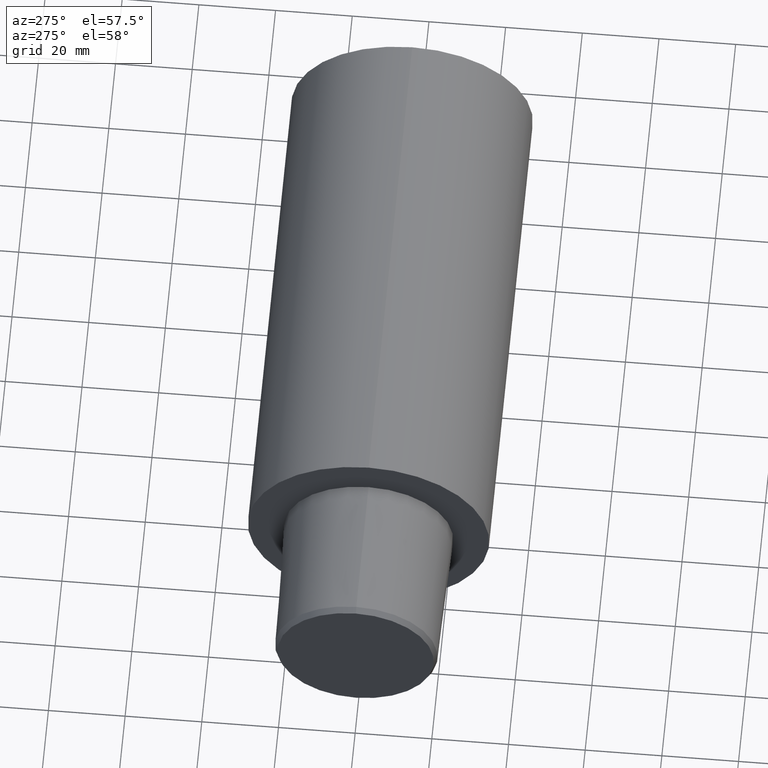
[diagram: clean part render]
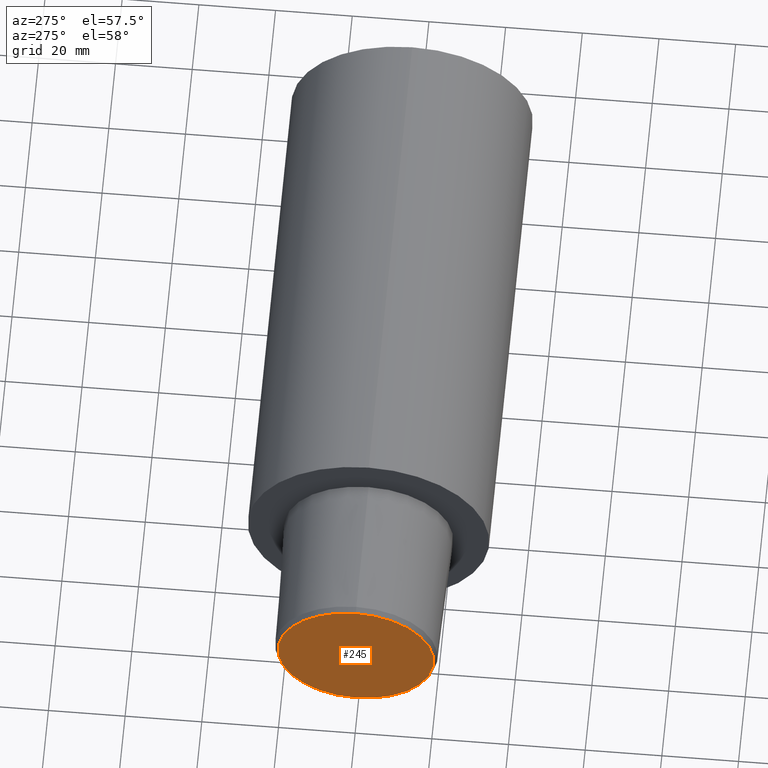
[diagram: same view with one face highlighted and labeled with its STEP entity id]
A machine part, auxiliary view. The second image highlights one B-rep face of the part: STEP entity #245.
In plain terms, the highlighted planar face has unit normal (1, 0, 0).
Its self-contained STEP definition (entity closure, byte-faithful):
#13 = CIRCLE ( 'NONE', #128, 20.34731859924573172 ) ;
#17 = DIRECTION ( 'NONE',  ( -1.000000000000000000, 0.000000000000000000, 0.000000000000000000 ) ) ;
#33 = CARTESIAN_POINT ( 'NONE',  ( -37.99999996124000035, 0.000000000000000000, -20.34731859924573172 ) ) ;
#34 = EDGE_CURVE ( 'NONE', #157, #282, #13, .T. ) ;
#54 = CIRCLE ( 'NONE', #82, 20.34731859924573172 ) ;
#58 = CARTESIAN_POINT ( 'NONE',  ( -37.99999996124000035, 0.000000000000000000, 0.000000000000000000 ) ) ;
#61 = DIRECTION ( 'NONE',  ( 1.000000000000000000, 0.000000000000000000, 0.000000000000000000 ) ) ;
#80 = CARTESIAN_POINT ( 'NONE',  ( -37.99999996124000035, 2.544856621203993748E-15, 20.34731859924573172 ) ) ;
#82 = AXIS2_PLACEMENT_3D ( 'NONE', #268, #17, #266 ) ;
#115 = DIRECTION ( 'NONE',  ( -1.000000000000000000, 0.000000000000000000, 0.000000000000000000 ) ) ;
#116 = CARTESIAN_POINT ( 'NONE',  ( -37.99999996124000035, 20.34731859924573172, 0.000000000000000000 ) ) ;
#128 = AXIS2_PLACEMENT_3D ( 'NONE', #58, #115, #167 ) ;
#129 = AXIS2_PLACEMENT_3D ( 'NONE', #116, #61, #235 ) ;
#130 = EDGE_LOOP ( 'NONE', ( #216, #321 ) ) ;
#157 = VERTEX_POINT ( 'NONE', #80 ) ;
#167 = DIRECTION ( 'NONE',  ( 0.000000000000000000, 0.000000000000000000, 1.000000000000000000 ) ) ;
#216 = ORIENTED_EDGE ( 'NONE', *, *, #351, .T. ) ;
#230 = FACE_OUTER_BOUND ( 'NONE', #130, .T. ) ;
#235 = DIRECTION ( 'NONE',  ( 0.000000000000000000, 1.000000000000000000, 0.000000000000000000 ) ) ;
#245 = ADVANCED_FACE ( 'NONE', ( #230 ), #287, .F. ) ;
#266 = DIRECTION ( 'NONE',  ( 0.000000000000000000, 0.000000000000000000, 1.000000000000000000 ) ) ;
#268 = CARTESIAN_POINT ( 'NONE',  ( -37.99999996124000035, 0.000000000000000000, 0.000000000000000000 ) ) ;
#282 = VERTEX_POINT ( 'NONE', #33 ) ;
#287 = PLANE ( 'NONE',  #129 ) ;
#321 = ORIENTED_EDGE ( 'NONE', *, *, #34, .T. ) ;
#351 = EDGE_CURVE ( 'NONE', #282, #157, #54, .T. ) ;